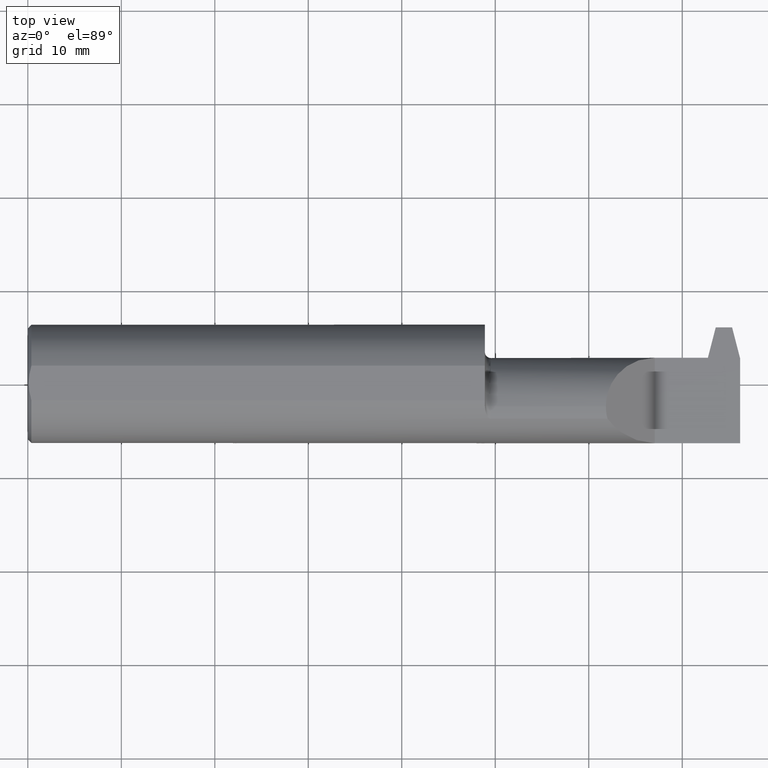
[diagram: clean part render]
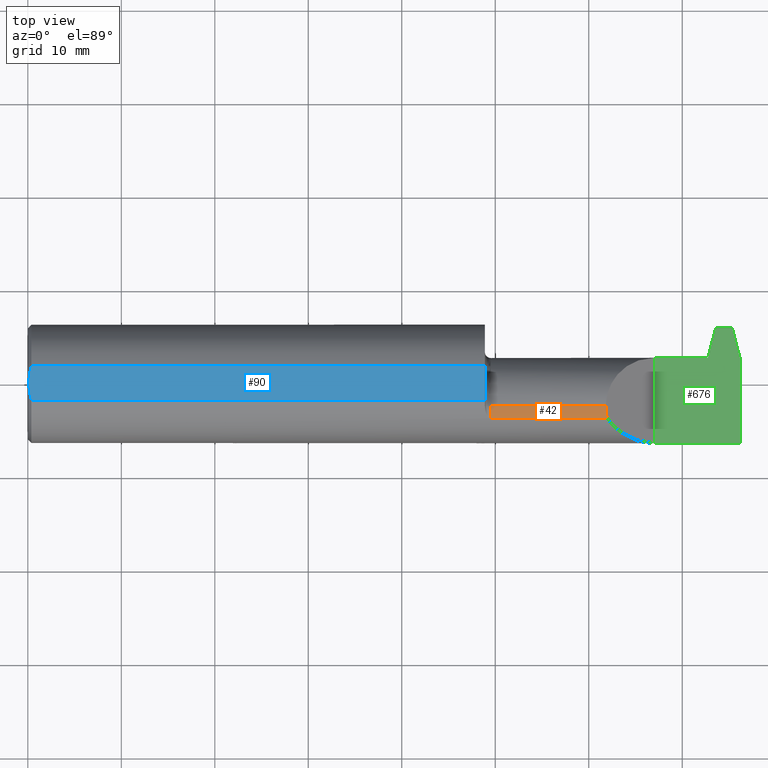
[diagram: same view with three faces highlighted in distinct colors, each labeled with its STEP entity id]
A machine part, top view with three faces highlighted in distinct colors.
Their STEP definitions:

[orange] entity #42 — the highlighted cylindrical surface (partial cylindrical patch) has radius 5.2578 mm, axis along (-1, -0, -0).
#42 = ADVANCED_FACE ( 'NONE', ( #431 ), #68, .T. ) ;
#63 = CARTESIAN_POINT ( 'NONE',  ( 1.925000000000000266, -0.09685000000000000553, 0.000000000000000000 ) ) ;
#68 = CYLINDRICAL_SURFACE ( 'NONE', #587, 0.2070000000000000173 ) ;
#117 = ORIENTED_EDGE ( 'NONE', *, *, #527, .T. ) ;
#124 = VECTOR ( 'NONE', #706, 39.37007874015748143 ) ;
#201 = CARTESIAN_POINT ( 'NONE',  ( 2.434350000000000680, -0.1146400775661694377, 0.2070000000000000451 ) ) ;
#210 =( BOUNDED_CURVE ( )  B_SPLINE_CURVE ( 3, ( #286, #201, #350, #220 ),
 .UNSPECIFIED., .F., .F. ) 
 B_SPLINE_CURVE_WITH_KNOTS ( ( 4, 4 ),
 ( 0.000000000000000000, 0.2571164291075390129 ),
 .UNSPECIFIED. ) 
 CURVE ( )  GEOMETRIC_REPRESENTATION_ITEM ( )  RATIONAL_B_SPLINE_CURVE ( ( 1.000000000000000000, 0.9944985117787172868, 0.9944985117787172868, 1.000000000000000000 ) ) 
 REPRESENTATION_ITEM ( '' )  );
#220 = CARTESIAN_POINT ( 'NONE',  ( 2.441154655244710980, -0.1494886164171400911, 0.2001953447552893839 ) ) ;
#225 = VERTEX_POINT ( 'NONE', #339 ) ;
#286 = CARTESIAN_POINT ( 'NONE',  ( 2.434350000000000680, -0.09685000000000000553, 0.2070000000000000173 ) ) ;
#339 = CARTESIAN_POINT ( 'NONE',  ( 1.950000000000000178, -0.09685000000000000553, 0.2070000000000000173 ) ) ;
#350 = CARTESIAN_POINT ( 'NONE',  ( 2.436630766022311434, -0.1322833472790598819, 0.2047192339776892356 ) ) ;
#388 = DIRECTION ( 'NONE',  ( 1.000000000000000000, 0.000000000000000000, 0.000000000000000000 ) ) ;
#393 = CARTESIAN_POINT ( 'NONE',  ( 1.950000000000000178, -0.1494886164171399245, 0.2001953447552894949 ) ) ;
#398 = VERTEX_POINT ( 'NONE', #393 ) ;
#427 = ORIENTED_EDGE ( 'NONE', *, *, #522, .T. ) ;
#431 = FACE_OUTER_BOUND ( 'NONE', #450, .T. ) ;
#449 = EDGE_CURVE ( 'NONE', #225, #398, #508, .T. ) ;
#450 = EDGE_LOOP ( 'NONE', ( #851, #117, #878, #427 ) ) ;
#508 = CIRCLE ( 'NONE', #523, 0.2070000000000000173 ) ;
#522 = EDGE_CURVE ( 'NONE', #398, #742, #644, .T. ) ;
#523 = AXIS2_PLACEMENT_3D ( 'NONE', #746, #388, #608 ) ;
#527 = EDGE_CURVE ( 'NONE', #627, #225, #639, .T. ) ;
#576 = CARTESIAN_POINT ( 'NONE',  ( 2.441154655244710980, -0.1494886164171400911, 0.2001953447552893839 ) ) ;
#587 = AXIS2_PLACEMENT_3D ( 'NONE', #63, #652, #798 ) ;
#608 = DIRECTION ( 'NONE',  ( 0.000000000000000000, 0.000000000000000000, -1.000000000000000000 ) ) ;
#627 = VERTEX_POINT ( 'NONE', #792 ) ;
#639 = LINE ( 'NONE', #711, #684 ) ;
#644 = LINE ( 'NONE', #852, #124 ) ;
#652 = DIRECTION ( 'NONE',  ( -1.000000000000000000, -0.000000000000000000, -0.000000000000000000 ) ) ;
#684 = VECTOR ( 'NONE', #802, 39.37007874015748143 ) ;
#706 = DIRECTION ( 'NONE',  ( 1.000000000000000000, 0.000000000000000000, 0.000000000000000000 ) ) ;
#711 = CARTESIAN_POINT ( 'NONE',  ( 1.925000000000000266, -0.09685000000000000553, 0.2070000000000000173 ) ) ;
#742 = VERTEX_POINT ( 'NONE', #576 ) ;
#746 = CARTESIAN_POINT ( 'NONE',  ( 1.950000000000000178, -0.09685000000000000553, 0.000000000000000000 ) ) ;
#792 = CARTESIAN_POINT ( 'NONE',  ( 2.434350000000000680, -0.09685000000000000553, 0.2070000000000000173 ) ) ;
#798 = DIRECTION ( 'NONE',  ( 0.000000000000000000, 0.000000000000000000, 1.000000000000000000 ) ) ;
#802 = DIRECTION ( 'NONE',  ( -1.000000000000000000, -0.000000000000000000, -0.000000000000000000 ) ) ;
#851 = ORIENTED_EDGE ( 'NONE', *, *, #921, .F. ) ;
#852 = CARTESIAN_POINT ( 'NONE',  ( 2.392500000000000071, -0.1494886164171399245, 0.2001953447552894949 ) ) ;
#878 = ORIENTED_EDGE ( 'NONE', *, *, #449, .T. ) ;
#921 = EDGE_CURVE ( 'NONE', #627, #742, #210, .T. ) ;

[blue] entity #90 — the highlighted planar face has unit normal (-0, 0, -1).
#26 = VECTOR ( 'NONE', #48, 39.37007874015748143 ) ;
#35 = ORIENTED_EDGE ( 'NONE', *, *, #696, .F. ) ;
#48 = DIRECTION ( 'NONE',  ( 0.000000000000000000, -1.000000000000000000, 0.000000000000000000 ) ) ;
#55 = ORIENTED_EDGE ( 'NONE', *, *, #766, .F. ) ;
#61 = VERTEX_POINT ( 'NONE', #722 ) ;
#67 = CARTESIAN_POINT ( 'NONE',  ( 0.004000000000001630723, -8.838795635097487697E-18, 0.2388499999999999790 ) ) ;
#70 = VERTEX_POINT ( 'NONE', #72 ) ;
#72 = CARTESIAN_POINT ( 'NONE',  ( 1.925000000000000266, 0.07331916529803135518, 0.2388499999999999790 ) ) ;
#90 = ADVANCED_FACE ( 'NONE', ( #267 ), #198, .F. ) ;
#103 = ORIENTED_EDGE ( 'NONE', *, *, #280, .T. ) ;
#121 = CARTESIAN_POINT ( 'NONE',  ( 1.925000000000000266, 0.1000000000000000056, 0.2388499999999999790 ) ) ;
#125 = CARTESIAN_POINT ( 'NONE',  ( 0.01500000000000188509, -0.07331916529803116089, 0.2388499999999999790 ) ) ;
#140 = ORIENTED_EDGE ( 'NONE', *, *, #493, .T. ) ;
#156 = LINE ( 'NONE', #590, #195 ) ;
#192 = LINE ( 'NONE', #571, #377 ) ;
#195 = VECTOR ( 'NONE', #223, 39.37007874015748143 ) ;
#198 = PLANE ( 'NONE',  #338 ) ;
#223 = DIRECTION ( 'NONE',  ( -1.000000000000000000, -0.000000000000000000, -0.000000000000000000 ) ) ;
#236 = CARTESIAN_POINT ( 'NONE',  ( 0.01500000000000188856, 0.07331916529803116089, 0.2388499999999999790 ) ) ;
#267 = FACE_OUTER_BOUND ( 'NONE', #610, .T. ) ;
#280 = EDGE_CURVE ( 'NONE', #61, #572, #834, .T. ) ;
#338 = AXIS2_PLACEMENT_3D ( 'NONE', #712, #496, #358 ) ;
#345 = CARTESIAN_POINT ( 'NONE',  ( 0.004000000000001630723, -8.838795635097487697E-18, 0.2388499999999999790 ) ) ;
#358 = DIRECTION ( 'NONE',  ( -1.000000000000000000, 0.000000000000000000, 0.000000000000000000 ) ) ;
#377 = VECTOR ( 'NONE', #490, 39.37007874015748143 ) ;
#396 = CARTESIAN_POINT ( 'NONE',  ( 0.008000051362619074735, 0.04946541355466502199, 0.2388499999999999790 ) ) ;
#490 = DIRECTION ( 'NONE',  ( 1.000000000000000000, 0.000000000000000000, 0.000000000000000000 ) ) ;
#493 = EDGE_CURVE ( 'NONE', #572, #701, #649, .T. ) ;
#494 = CARTESIAN_POINT ( 'NONE',  ( 0.004000000000001633325, -0.02498450228869505615, 0.2388499999999999790 ) ) ;
#496 = DIRECTION ( 'NONE',  ( -0.000000000000000000, 0.000000000000000000, -1.000000000000000000 ) ) ;
#529 = CARTESIAN_POINT ( 'NONE',  ( 0.004000000000001628989, 0.02507688590673098211, 0.2388499999999999790 ) ) ;
#571 = CARTESIAN_POINT ( 'NONE',  ( 3.000000000000000444, 0.07331916529803135518, 0.2388499999999998957 ) ) ;
#572 = VERTEX_POINT ( 'NONE', #67 ) ;
#590 = CARTESIAN_POINT ( 'NONE',  ( 3.000000000000000444, -0.07331916529803135518, 0.2388499999999998957 ) ) ;
#610 = EDGE_LOOP ( 'NONE', ( #55, #617, #103, #140, #35 ) ) ;
#617 = ORIENTED_EDGE ( 'NONE', *, *, #892, .F. ) ;
#649 = B_SPLINE_CURVE_WITH_KNOTS ( 'NONE', 3,
 ( #345, #494, #777, #125 ),
 .UNSPECIFIED., .F., .F.,
 ( 4, 4 ),
 ( 0.007106848166584502080, 0.008972081732692345837 ),
 .UNSPECIFIED. ) ;
#653 = CARTESIAN_POINT ( 'NONE',  ( 0.01500000000000188509, -0.07331916529803116089, 0.2388499999999999790 ) ) ;
#696 = EDGE_CURVE ( 'NONE', #882, #701, #156, .T. ) ;
#701 = VERTEX_POINT ( 'NONE', #653 ) ;
#712 = CARTESIAN_POINT ( 'NONE',  ( 0.000000000000000000, 0.1000000000000000056, 0.2388499999999999790 ) ) ;
#722 = CARTESIAN_POINT ( 'NONE',  ( 0.01500000000000188856, 0.07331916529803116089, 0.2388499999999999790 ) ) ;
#749 = LINE ( 'NONE', #121, #26 ) ;
#766 = EDGE_CURVE ( 'NONE', #70, #882, #749, .T. ) ;
#777 = CARTESIAN_POINT ( 'NONE',  ( 0.007978205860499350960, -0.04939097055354213506, 0.2388499999999999790 ) ) ;
#782 = CARTESIAN_POINT ( 'NONE',  ( 1.925000000000000266, -0.07331916529803114702, 0.2388499999999999790 ) ) ;
#834 = B_SPLINE_CURVE_WITH_KNOTS ( 'NONE', 3,
 ( #236, #396, #529, #884 ),
 .UNSPECIFIED., .F., .F.,
 ( 4, 4 ),
 ( 0.005234717643982266660, 0.007106848166584502080 ),
 .UNSPECIFIED. ) ;
#882 = VERTEX_POINT ( 'NONE', #782 ) ;
#884 = CARTESIAN_POINT ( 'NONE',  ( 0.004000000000001630723, -8.838795635097487697E-18, 0.2388499999999999790 ) ) ;
#892 = EDGE_CURVE ( 'NONE', #61, #70, #192, .T. ) ;

[green] entity #676 — the highlighted planar face has unit normal (-0, 0, -1).
#3 = DIRECTION ( 'NONE',  ( 0.2503800040544334471, -0.9681476403781097417, 0.000000000000000000 ) ) ;
#44 = ORIENTED_EDGE ( 'NONE', *, *, #791, .F. ) ;
#65 = VERTEX_POINT ( 'NONE', #786 ) ;
#69 = CARTESIAN_POINT ( 'NONE',  ( 2.640000000000000124, 0.2999999999999999889, -6.123031769111886291E-17 ) ) ;
#84 = VECTOR ( 'NONE', #832, 39.37007874015748143 ) ;
#86 = VERTEX_POINT ( 'NONE', #218 ) ;
#94 = VECTOR ( 'NONE', #741, 39.37007874015748143 ) ;
#113 = VERTEX_POINT ( 'NONE', #935 ) ;
#122 = ORIENTED_EDGE ( 'NONE', *, *, #630, .T. ) ;
#139 = LINE ( 'NONE', #656, #891 ) ;
#146 = PLANE ( 'NONE',  #641 ) ;
#150 = DIRECTION ( 'NONE',  ( -0.000000000000000000, 0.000000000000000000, -1.000000000000000000 ) ) ;
#164 = EDGE_CURVE ( 'NONE', #370, #65, #190, .T. ) ;
#173 = CARTESIAN_POINT ( 'NONE',  ( 3.000000000000000444, -0.2498499999999999055, -6.123031769111886291E-17 ) ) ;
#181 = VERTEX_POINT ( 'NONE', #326 ) ;
#190 = LINE ( 'NONE', #700, #84 ) ;
#200 = VERTEX_POINT ( 'NONE', #252 ) ;
#203 = LINE ( 'NONE', #272, #923 ) ;
#213 = DIRECTION ( 'NONE',  ( -1.000000000000000000, 0.000000000000000000, 0.000000000000000000 ) ) ;
#218 = CARTESIAN_POINT ( 'NONE',  ( 2.897000000000000242, 0.2381499999999928674, -6.123031769111886291E-17 ) ) ;
#221 = CARTESIAN_POINT ( 'NONE',  ( 2.639999999999999236, 0.2381499999999971973, -6.123031769111886291E-17 ) ) ;
#234 = ORIENTED_EDGE ( 'NONE', *, *, #462, .F. ) ;
#237 = CARTESIAN_POINT ( 'NONE',  ( 2.843896949202449953, 0.1101499999999999563, 0.000000000000000000 ) ) ;
#239 = CARTESIAN_POINT ( 'NONE',  ( 2.863896949202449527, 0.1101499999999999702, 0.000000000000000000 ) ) ;
#252 = CARTESIAN_POINT ( 'NONE',  ( 3.000000000000000444, 0.1066817547734303651, 0.000000000000000000 ) ) ;
#272 = CARTESIAN_POINT ( 'NONE',  ( 2.900103411012272758, 0.2501499999999999835, 0.000000000000000000 ) ) ;
#303 = ORIENTED_EDGE ( 'NONE', *, *, #387, .F. ) ;
#307 = LINE ( 'NONE', #597, #94 ) ;
#323 = ORIENTED_EDGE ( 'NONE', *, *, #344, .T. ) ;
#326 = CARTESIAN_POINT ( 'NONE',  ( 2.640000000000000124, 0.1101499999999999702, -6.123031769111885058E-17 ) ) ;
#336 = CARTESIAN_POINT ( 'NONE',  ( 2.863896949202449527, 0.1101499999999999702, 0.000000000000000000 ) ) ;
#344 = EDGE_CURVE ( 'NONE', #370, #200, #307, .T. ) ;
#356 = VERTEX_POINT ( 'NONE', #237 ) ;
#362 = DIRECTION ( 'NONE',  ( -0.000000000000000000, 1.000000000000000000, -0.000000000000000000 ) ) ;
#366 = ORIENTED_EDGE ( 'NONE', *, *, #750, .F. ) ;
#370 = VERTEX_POINT ( 'NONE', #173 ) ;
#372 = VECTOR ( 'NONE', #473, 39.37007874015748143 ) ;
#387 = EDGE_CURVE ( 'NONE', #479, #86, #203, .T. ) ;
#412 = EDGE_LOOP ( 'NONE', ( #122, #303, #44, #234, #910, #904, #323, #366 ) ) ;
#424 = LINE ( 'NONE', #826, #372 ) ;
#462 = EDGE_CURVE ( 'NONE', #181, #356, #424, .T. ) ;
#473 = DIRECTION ( 'NONE',  ( 1.000000000000000000, 0.000000000000000000, 0.000000000000000000 ) ) ;
#479 = VERTEX_POINT ( 'NONE', #239 ) ;
#502 = DIRECTION ( 'NONE',  ( 0.2503800040544308936, 0.9681476403781105189, -0.000000000000000000 ) ) ;
#517 = DIRECTION ( 'NONE',  ( -1.000000000000000000, 1.692248368533555199E-14, 0.000000000000000000 ) ) ;
#565 = VECTOR ( 'NONE', #825, 39.37007874015748143 ) ;
#573 = VECTOR ( 'NONE', #517, 39.37007874015748143 ) ;
#579 = LINE ( 'NONE', #875, #736 ) ;
#597 = CARTESIAN_POINT ( 'NONE',  ( 3.000000000000000444, 0.2999999999999999889, -6.123031769111886291E-17 ) ) ;
#613 = EDGE_CURVE ( 'NONE', #65, #181, #579, .T. ) ;
#630 = EDGE_CURVE ( 'NONE', #113, #86, #806, .T. ) ;
#641 = AXIS2_PLACEMENT_3D ( 'NONE', #69, #150, #213 ) ;
#656 = CARTESIAN_POINT ( 'NONE',  ( 2.962896588987727675, 0.2501499999999999835, 0.000000000000000000 ) ) ;
#676 = ADVANCED_FACE ( 'NONE', ( #723 ), #146, .F. ) ;
#700 = CARTESIAN_POINT ( 'NONE',  ( 3.000000000000000444, -0.2498499999999999610, -6.123031769111886291E-17 ) ) ;
#723 = FACE_OUTER_BOUND ( 'NONE', #412, .T. ) ;
#736 = VECTOR ( 'NONE', #362, 39.37007874015748143 ) ;
#741 = DIRECTION ( 'NONE',  ( -0.000000000000000000, 1.000000000000000000, -0.000000000000000000 ) ) ;
#750 = EDGE_CURVE ( 'NONE', #113, #200, #139, .T. ) ;
#786 = CARTESIAN_POINT ( 'NONE',  ( 2.640000000000000124, -0.2498499999999999610, -6.123031769111885058E-17 ) ) ;
#787 = LINE ( 'NONE', #336, #565 ) ;
#791 = EDGE_CURVE ( 'NONE', #356, #479, #787, .T. ) ;
#806 = LINE ( 'NONE', #221, #573 ) ;
#825 = DIRECTION ( 'NONE',  ( 1.000000000000000000, 8.537024980200913523E-16, -0.000000000000000000 ) ) ;
#826 = CARTESIAN_POINT ( 'NONE',  ( 1.925000000000000266, 0.1101499999999999979, -6.123031769111886291E-17 ) ) ;
#832 = DIRECTION ( 'NONE',  ( -1.000000000000000000, -0.000000000000000000, -0.000000000000000000 ) ) ;
#875 = CARTESIAN_POINT ( 'NONE',  ( 2.640000000000000124, 0.2999999999999999889, -6.123031769111886291E-17 ) ) ;
#891 = VECTOR ( 'NONE', #3, 39.37007874015748854 ) ;
#904 = ORIENTED_EDGE ( 'NONE', *, *, #164, .F. ) ;
#910 = ORIENTED_EDGE ( 'NONE', *, *, #613, .F. ) ;
#923 = VECTOR ( 'NONE', #502, 39.37007874015748143 ) ;
#935 = CARTESIAN_POINT ( 'NONE',  ( 2.966000000000000636, 0.2381499999999917017, 0.000000000000000000 ) ) ;